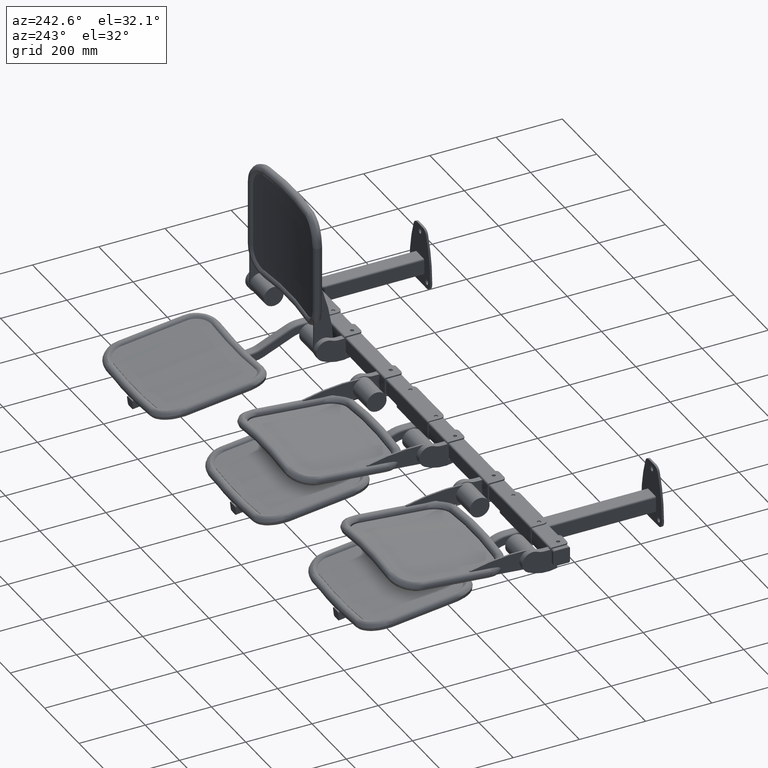
[diagram: clean part render]
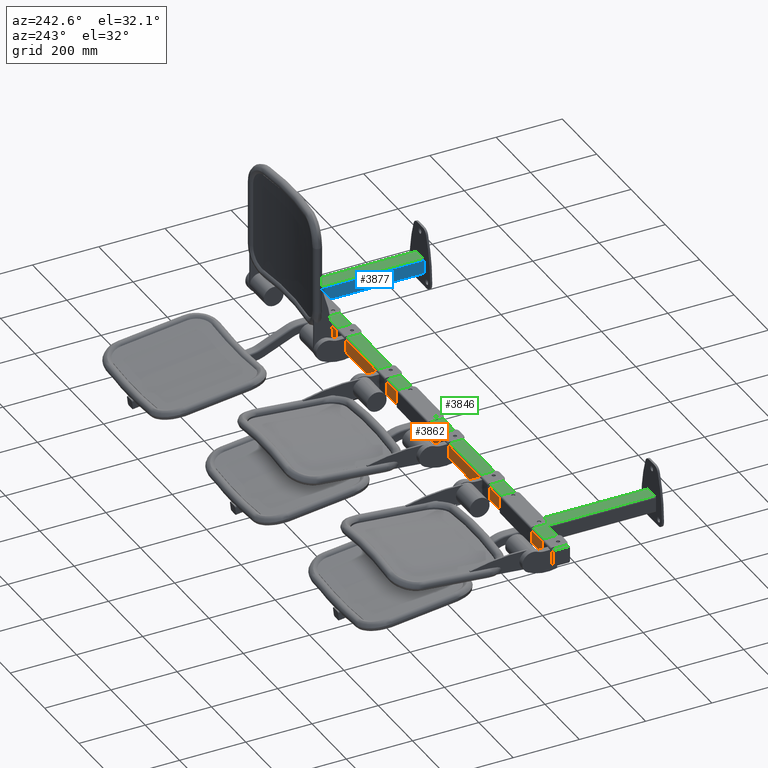
[diagram: same view with three faces highlighted in distinct colors, each labeled with its STEP entity id]
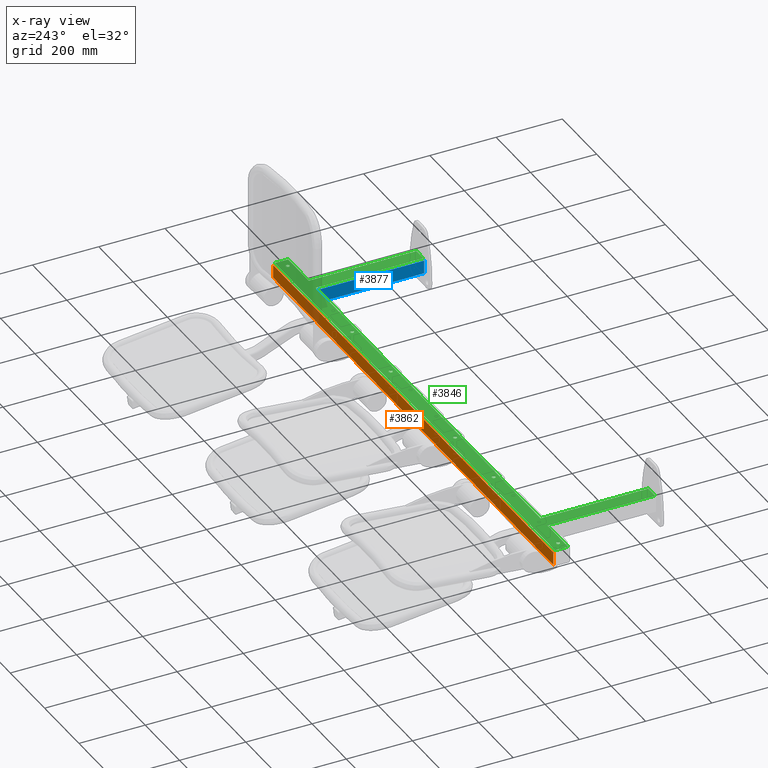
[diagram: x-ray of the same camera — body ghosted, the three highlighted faces saturated]
A machine part, auxiliary view with three faces highlighted in distinct colors.
The next image is the same camera in x-ray (body ghosted, the three faces saturated) — at least one of them is partly hidden behind the body in this view.
Their STEP definitions:

[orange] entity #3862 — the highlighted planar face has unit normal (0, -1, 0).
#3862 = ADVANCED_FACE ( 'NONE', ( #8371 ), #10495, .F. ) ;
#4730 = CARTESIAN_POINT ( 'NONE',  ( 816.0000000000000000, 376.0000000000000000, -19.99999999999999600 ) ) ;
#4731 = CARTESIAN_POINT ( 'NONE',  ( -816.0000000000000000, 376.0000000000000000, -19.99999999999999600 ) ) ;
#4752 = CARTESIAN_POINT ( 'NONE',  ( 816.0000000000000000, 376.0000000000000000, 20.00000000000000000 ) ) ;
#4958 = CARTESIAN_POINT ( 'NONE',  ( -816.0000000000000000, 376.0000000000000000, 20.00000000000000000 ) ) ;
#5365 = LINE ( 'NONE', #5999, #5394 ) ;
#5386 = LINE ( 'NONE', #5994, #5389 ) ;
#5389 = VECTOR ( 'NONE', #5995, 1000.000000000000000 ) ;
#5392 = LINE ( 'NONE', #6005, #5398 ) ;
#5394 = VECTOR ( 'NONE', #6004, 1000.000000000000000 ) ;
#5396 = LINE ( 'NONE', #6007, #5402 ) ;
#5398 = VECTOR ( 'NONE', #6006, 1000.000000000000000 ) ;
#5402 = VECTOR ( 'NONE', #6008, 1000.000000000000000 ) ;
#5994 = CARTESIAN_POINT ( 'NONE',  ( -818.0000000000000000, 376.0000000000000000, 20.00000000000000000 ) ) ;
#5995 = DIRECTION ( 'NONE',  ( 1.000000000000000000, -0.0000000000000000000, -0.0000000000000000000 ) ) ;
#5999 = CARTESIAN_POINT ( 'NONE',  ( 816.0000000000000000, 376.0000000000000000, 25.00000000000000000 ) ) ;
#6004 = DIRECTION ( 'NONE',  ( 0.0000000000000000000, 0.0000000000000000000, -1.000000000000000000 ) ) ;
#6005 = CARTESIAN_POINT ( 'NONE',  ( -818.0000000000000000, 376.0000000000000000, -19.99999999999999600 ) ) ;
#6006 = DIRECTION ( 'NONE',  ( -1.000000000000000000, 0.0000000000000000000, 0.0000000000000000000 ) ) ;
#6007 = CARTESIAN_POINT ( 'NONE',  ( -816.0000000000000000, 376.0000000000000000, 25.00000000000000000 ) ) ;
#6008 = DIRECTION ( 'NONE',  ( -0.0000000000000000000, -0.0000000000000000000, 1.000000000000000000 ) ) ;
#8371 = FACE_OUTER_BOUND ( 'NONE', #13182, .T. ) ;
#10393 = CARTESIAN_POINT ( 'NONE',  ( -818.0000000000000000, 376.0000000000000000, 25.00000000000000000 ) ) ;
#10495 = PLANE ( 'NONE',  #15329 ) ;
#10497 = DIRECTION ( 'NONE',  ( 0.0000000000000000000, -1.000000000000000000, 0.0000000000000000000 ) ) ;
#10498 = DIRECTION ( 'NONE',  ( 0.0000000000000000000, -0.0000000000000000000, -1.000000000000000000 ) ) ;
#12459 = EDGE_CURVE ( 'NONE', #14390, #13100, #5386, .T. ) ;
#12460 = EDGE_CURVE ( 'NONE', #13100, #13078, #5365, .T. ) ;
#12461 = EDGE_CURVE ( 'NONE', #13078, #13079, #5392, .T. ) ;
#12462 = EDGE_CURVE ( 'NONE', #13079, #14390, #5396, .T. ) ;
#12643 = ORIENTED_EDGE ( 'NONE', *, *, #12459, .T. ) ;
#12644 = ORIENTED_EDGE ( 'NONE', *, *, #12460, .T. ) ;
#12645 = ORIENTED_EDGE ( 'NONE', *, *, #12461, .T. ) ;
#12646 = ORIENTED_EDGE ( 'NONE', *, *, #12462, .T. ) ;
#13078 = VERTEX_POINT ( 'NONE', #4730 ) ;
#13079 = VERTEX_POINT ( 'NONE', #4731 ) ;
#13100 = VERTEX_POINT ( 'NONE', #4752 ) ;
#13182 = EDGE_LOOP ( 'NONE', ( #12643, #12644, #12645, #12646 ) ) ;
#14390 = VERTEX_POINT ( 'NONE', #4958 ) ;
#15329 = AXIS2_PLACEMENT_3D ( 'NONE', #10393, #10497, #10498 ) ;

[blue] entity #3877 — the highlighted planar face has unit normal (1, 0, 0).
#3877 = ADVANCED_FACE ( 'NONE', ( #8394 ), #6387, .F. ) ;
#4558 = ORIENTED_EDGE ( 'NONE', *, *, #12230, .T. ) ;
#4559 = ORIENTED_EDGE ( 'NONE', *, *, #12232, .T. ) ;
#4560 = ORIENTED_EDGE ( 'NONE', *, *, #12233, .F. ) ;
#4561 = ORIENTED_EDGE ( 'NONE', *, *, #12234, .T. ) ;
#4758 = CARTESIAN_POINT ( 'NONE',  ( 649.9999999999998900, 326.0000000000000000, 20.00000000000000000 ) ) ;
#4954 = CARTESIAN_POINT ( 'NONE',  ( 649.9999999999998900, 326.0000000000000000, -19.99999999999999600 ) ) ;
#4955 = CARTESIAN_POINT ( 'NONE',  ( 650.0000000000000000, 6.000000000000000900, -19.99999999999999600 ) ) ;
#4956 = CARTESIAN_POINT ( 'NONE',  ( 650.0000000000000000, 6.000000000000000900, 20.00000000000000000 ) ) ;
#6285 = CARTESIAN_POINT ( 'NONE',  ( 649.9999999999998900, 326.0000000000000000, 25.00000000000000000 ) ) ;
#6387 = PLANE ( 'NONE',  #9076 ) ;
#6389 = DIRECTION ( 'NONE',  ( 1.000000000000000000, 3.469446951953614200E-016, -0.0000000000000000000 ) ) ;
#6390 = DIRECTION ( 'NONE',  ( -3.469446951953614200E-016, 1.000000000000000000, 0.0000000000000000000 ) ) ;
#6890 = CARTESIAN_POINT ( 'NONE',  ( 649.9999999999998900, 326.0000000000000000, 25.00000000000000000 ) ) ;
#6891 = DIRECTION ( 'NONE',  ( -0.0000000000000000000, -0.0000000000000000000, -1.000000000000000000 ) ) ;
#6893 = CARTESIAN_POINT ( 'NONE',  ( 650.0000000000000000, 6.000000000000003600, -19.99999999999999600 ) ) ;
#6894 = DIRECTION ( 'NONE',  ( 3.469446951953614200E-016, -1.000000000000000000, 0.0000000000000000000 ) ) ;
#6895 = CARTESIAN_POINT ( 'NONE',  ( 650.0000000000000000, 6.000000000000000900, 25.00000000000000000 ) ) ;
#6896 = DIRECTION ( 'NONE',  ( -0.0000000000000000000, -0.0000000000000000000, -1.000000000000000000 ) ) ;
#6897 = CARTESIAN_POINT ( 'NONE',  ( 649.9999999999998900, 326.0000000000000000, 20.00000000000000000 ) ) ;
#6898 = DIRECTION ( 'NONE',  ( -3.469446951953614200E-016, 1.000000000000000000, -0.0000000000000000000 ) ) ;
#8394 = FACE_OUTER_BOUND ( 'NONE', #13143, .T. ) ;
#9076 = AXIS2_PLACEMENT_3D ( 'NONE', #6285, #6389, #6390 ) ;
#12230 = EDGE_CURVE ( 'NONE', #13106, #14382, #13432, .T. ) ;
#12232 = EDGE_CURVE ( 'NONE', #14382, #14384, #13436, .T. ) ;
#12233 = EDGE_CURVE ( 'NONE', #14386, #14384, #13438, .T. ) ;
#12234 = EDGE_CURVE ( 'NONE', #14386, #13106, #13440, .T. ) ;
#13106 = VERTEX_POINT ( 'NONE', #4758 ) ;
#13143 = EDGE_LOOP ( 'NONE', ( #4558, #4559, #4560, #4561 ) ) ;
#13432 = LINE ( 'NONE', #6890, #13435 ) ;
#13435 = VECTOR ( 'NONE', #6891, 1000.000000000000000 ) ;
#13436 = LINE ( 'NONE', #6893, #13439 ) ;
#13438 = LINE ( 'NONE', #6895, #13441 ) ;
#13439 = VECTOR ( 'NONE', #6894, 1000.000000000000000 ) ;
#13440 = LINE ( 'NONE', #6897, #13443 ) ;
#13441 = VECTOR ( 'NONE', #6896, 1000.000000000000000 ) ;
#13443 = VECTOR ( 'NONE', #6898, 1000.000000000000000 ) ;
#14382 = VERTEX_POINT ( 'NONE', #4954 ) ;
#14384 = VERTEX_POINT ( 'NONE', #4955 ) ;
#14386 = VERTEX_POINT ( 'NONE', #4956 ) ;

[green] entity #3846 — the highlighted planar face has unit normal (0, 0, -1).
#1607 = CARTESIAN_POINT ( 'NONE',  ( 187.5000000000000000, 347.0000000000000000, 25.00000000000000000 ) ) ;
#1608 = DIRECTION ( 'NONE',  ( 0.0000000000000000000, 0.0000000000000000000, 1.000000000000000000 ) ) ;
#1609 = DIRECTION ( 'NONE',  ( 1.000000000000000000, 0.0000000000000000000, 0.0000000000000000000 ) ) ;
#1617 = CARTESIAN_POINT ( 'NONE',  ( -187.5000000000000000, 347.0000000000000000, 25.00000000000000000 ) ) ;
#1618 = DIRECTION ( 'NONE',  ( 0.0000000000000000000, 0.0000000000000000000, 1.000000000000000000 ) ) ;
#1619 = DIRECTION ( 'NONE',  ( 1.000000000000000000, 0.0000000000000000000, 0.0000000000000000000 ) ) ;
#1627 = CARTESIAN_POINT ( 'NONE',  ( 412.5000000000000600, 347.0000000000000000, 25.00000000000000000 ) ) ;
#1628 = DIRECTION ( 'NONE',  ( 0.0000000000000000000, 0.0000000000000000000, 1.000000000000000000 ) ) ;
#1629 = DIRECTION ( 'NONE',  ( -1.000000000000000000, 0.0000000000000000000, 0.0000000000000000000 ) ) ;
#1637 = CARTESIAN_POINT ( 'NONE',  ( 787.5000000000001100, 347.0000000000000000, 25.00000000000000000 ) ) ;
#1638 = DIRECTION ( 'NONE',  ( 0.0000000000000000000, 0.0000000000000000000, 1.000000000000000000 ) ) ;
#1639 = DIRECTION ( 'NONE',  ( -1.000000000000000000, 0.0000000000000000000, 0.0000000000000000000 ) ) ;
#1647 = CARTESIAN_POINT ( 'NONE',  ( -412.5000000000000600, 347.0000000000000000, 25.00000000000000000 ) ) ;
#1648 = DIRECTION ( 'NONE',  ( 0.0000000000000000000, 0.0000000000000000000, 1.000000000000000000 ) ) ;
#1649 = DIRECTION ( 'NONE',  ( 1.000000000000000000, 0.0000000000000000000, 0.0000000000000000000 ) ) ;
#1657 = CARTESIAN_POINT ( 'NONE',  ( -787.5000000000001100, 347.0000000000000000, 25.00000000000000000 ) ) ;
#1658 = DIRECTION ( 'NONE',  ( 0.0000000000000000000, 0.0000000000000000000, 1.000000000000000000 ) ) ;
#1659 = DIRECTION ( 'NONE',  ( 1.000000000000000000, 0.0000000000000000000, 0.0000000000000000000 ) ) ;
#2873 = VERTEX_POINT ( 'NONE', #13478 ) ;
#2878 = VERTEX_POINT ( 'NONE', #13481 ) ;
#2881 = VERTEX_POINT ( 'NONE', #13483 ) ;
#2884 = VERTEX_POINT ( 'NONE', #13486 ) ;
#2909 = VERTEX_POINT ( 'NONE', #13506 ) ;
#2914 = VERTEX_POINT ( 'NONE', #13511 ) ;
#3846 = ADVANCED_FACE ( 'NONE', ( #8320, #8338, #8326, #8335, #8336, #8339, #8340 ), #4229, .F. ) ;
#4226 = DIRECTION ( 'NONE',  ( 0.0000000000000000000, 0.0000000000000000000, -1.000000000000000000 ) ) ;
#4227 = CARTESIAN_POINT ( 'NONE',  ( 0.0000000000000000000, 0.0000000000000000000, 25.00000000000000000 ) ) ;
#4229 = PLANE ( 'NONE',  #15320 ) ;
#4231 = DIRECTION ( 'NONE',  ( -1.000000000000000000, 0.0000000000000000000, -0.0000000000000000000 ) ) ;
#4494 = ORIENTED_EDGE ( 'NONE', *, *, #15163, .F. ) ;
#4495 = ORIENTED_EDGE ( 'NONE', *, *, #12186, .F. ) ;
#4496 = ORIENTED_EDGE ( 'NONE', *, *, #15171, .F. ) ;
#4497 = ORIENTED_EDGE ( 'NONE', *, *, #12187, .F. ) ;
#4498 = ORIENTED_EDGE ( 'NONE', *, *, #15179, .F. ) ;
#4499 = ORIENTED_EDGE ( 'NONE', *, *, #12188, .F. ) ;
#4500 = ORIENTED_EDGE ( 'NONE', *, *, #12189, .T. ) ;
#4501 = ORIENTED_EDGE ( 'NONE', *, *, #12190, .T. ) ;
#4502 = ORIENTED_EDGE ( 'NONE', *, *, #12191, .T. ) ;
#4503 = ORIENTED_EDGE ( 'NONE', *, *, #12192, .T. ) ;
#4504 = ORIENTED_EDGE ( 'NONE', *, *, #12193, .T. ) ;
#4505 = ORIENTED_EDGE ( 'NONE', *, *, #12194, .T. ) ;
#4506 = ORIENTED_EDGE ( 'NONE', *, *, #12432, .T. ) ;
#4507 = ORIENTED_EDGE ( 'NONE', *, *, #12195, .T. ) ;
#4508 = ORIENTED_EDGE ( 'NONE', *, *, #12196, .T. ) ;
#4509 = ORIENTED_EDGE ( 'NONE', *, *, #12197, .T. ) ;
#4510 = ORIENTED_EDGE ( 'NONE', *, *, #12198, .T. ) ;
#4511 = ORIENTED_EDGE ( 'NONE', *, *, #12199, .T. ) ;
#4512 = ORIENTED_EDGE ( 'NONE', *, *, #15175, .F. ) ;
#4513 = ORIENTED_EDGE ( 'NONE', *, *, #12200, .F. ) ;
#4514 = ORIENTED_EDGE ( 'NONE', *, *, #15167, .F. ) ;
#4515 = ORIENTED_EDGE ( 'NONE', *, *, #12201, .F. ) ;
#4516 = ORIENTED_EDGE ( 'NONE', *, *, #15159, .F. ) ;
#4517 = ORIENTED_EDGE ( 'NONE', *, *, #12202, .F. ) ;
#4700 = CARTESIAN_POINT ( 'NONE',  ( -655.0000000000000000, 6.000000000000000000, 25.00000000000000000 ) ) ;
#4857 = CARTESIAN_POINT ( 'NONE',  ( 816.0000000000000000, 371.0000000000000000, 25.00000000000000000 ) ) ;
#4872 = CARTESIAN_POINT ( 'NONE',  ( 654.9999999999998900, 331.0000000000000000, 25.00000000000000000 ) ) ;
#4881 = CARTESIAN_POINT ( 'NONE',  ( 695.0000000000001100, 6.000000000000000900, 25.00000000000000000 ) ) ;
#4908 = CARTESIAN_POINT ( 'NONE',  ( -816.0000000000000000, 371.0000000000000000, 25.00000000000000000 ) ) ;
#4924 = CARTESIAN_POINT ( 'NONE',  ( -695.0000000000002300, 331.0000000000000000, 25.00000000000000000 ) ) ;
#4945 = CARTESIAN_POINT ( 'NONE',  ( 816.0000000000000000, 331.0000000000000000, 25.00000000000000000 ) ) ;
#4946 = CARTESIAN_POINT ( 'NONE',  ( 655.0000000000000000, 6.000000000000000900, 25.00000000000000000 ) ) ;
#4949 = CARTESIAN_POINT ( 'NONE',  ( -654.9999999999998900, 331.0000000000000000, 25.00000000000000000 ) ) ;
#4974 = CARTESIAN_POINT ( 'NONE',  ( 695.0000000000002300, 331.0000000000000000, 25.00000000000000000 ) ) ;
#4989 = CARTESIAN_POINT ( 'NONE',  ( -816.0000000000000000, 331.0000000000000000, 25.00000000000000000 ) ) ;
#4996 = CARTESIAN_POINT ( 'NONE',  ( -417.7500000000000600, 347.0000000000000000, 25.00000000000000000 ) ) ;
#5001 = CARTESIAN_POINT ( 'NONE',  ( -407.2500000000000000, 347.0000000000000000, 25.00000000000000000 ) ) ;
#5009 = CARTESIAN_POINT ( 'NONE',  ( -695.0000000000001100, 6.000000000000000900, 25.00000000000000000 ) ) ;
#5020 = CARTESIAN_POINT ( 'NONE',  ( -792.7500000000001100, 347.0000000000000000, 25.00000000000000000 ) ) ;
#5025 = CARTESIAN_POINT ( 'NONE',  ( -782.2500000000001100, 347.0000000000000000, 25.00000000000000000 ) ) ;
#5027 = CARTESIAN_POINT ( 'NONE',  ( 192.7500000000000000, 347.0000000000000000, 25.00000000000000000 ) ) ;
#5028 = CARTESIAN_POINT ( 'NONE',  ( 182.2500000000000000, 347.0000000000000000, 25.00000000000000000 ) ) ;
#5298 = LINE ( 'NONE', #5932, #5301 ) ;
#5301 = VECTOR ( 'NONE', #5933, 1000.000000000000000 ) ;
#5932 = CARTESIAN_POINT ( 'NONE',  ( -700.0000000000001100, 6.000000000000000900, 25.00000000000000000 ) ) ;
#5933 = DIRECTION ( 'NONE',  ( 1.000000000000000000, -1.734723475976805600E-017, 0.0000000000000000000 ) ) ;
#6786 = DIRECTION ( 'NONE',  ( 1.000000000000000000, 0.0000000000000000000, 0.0000000000000000000 ) ) ;
#6790 = CARTESIAN_POINT ( 'NONE',  ( -187.5000000000000000, 347.0000000000000000, 25.00000000000000000 ) ) ;
#6791 = DIRECTION ( 'NONE',  ( 0.0000000000000000000, 0.0000000000000000000, 1.000000000000000000 ) ) ;
#6792 = DIRECTION ( 'NONE',  ( 1.000000000000000000, 0.0000000000000000000, 0.0000000000000000000 ) ) ;
#6793 = CARTESIAN_POINT ( 'NONE',  ( 787.5000000000001100, 347.0000000000000000, 25.00000000000000000 ) ) ;
#6794 = DIRECTION ( 'NONE',  ( 0.0000000000000000000, 0.0000000000000000000, 1.000000000000000000 ) ) ;
#6795 = DIRECTION ( 'NONE',  ( -1.000000000000000000, 0.0000000000000000000, 0.0000000000000000000 ) ) ;
#6796 = CARTESIAN_POINT ( 'NONE',  ( 816.0000000000000000, 0.0000000000000000000, 25.00000000000000000 ) ) ;
#6797 = CARTESIAN_POINT ( 'NONE',  ( 0.0000000000000000000, 331.0000000000000000, 25.00000000000000000 ) ) ;
#6798 = CARTESIAN_POINT ( 'NONE',  ( -787.5000000000001100, 347.0000000000000000, 25.00000000000000000 ) ) ;
#6799 = DIRECTION ( 'NONE',  ( 0.0000000000000000000, 0.0000000000000000000, 1.000000000000000000 ) ) ;
#6800 = DIRECTION ( 'NONE',  ( 1.000000000000000000, 0.0000000000000000000, 0.0000000000000000000 ) ) ;
#6802 = DIRECTION ( 'NONE',  ( 0.0000000000000000000, 1.000000000000000000, 0.0000000000000000000 ) ) ;
#6803 = CARTESIAN_POINT ( 'NONE',  ( 0.0000000000000000000, 371.0000000000000000, 25.00000000000000000 ) ) ;
#6804 = DIRECTION ( 'NONE',  ( -1.000000000000000000, 0.0000000000000000000, 0.0000000000000000000 ) ) ;
#6805 = CARTESIAN_POINT ( 'NONE',  ( -816.0000000000000000, 0.0000000000000000000, 25.00000000000000000 ) ) ;
#6806 = DIRECTION ( 'NONE',  ( 0.0000000000000000000, -1.000000000000000000, 0.0000000000000000000 ) ) ;
#6807 = CARTESIAN_POINT ( 'NONE',  ( 0.0000000000000000000, 331.0000000000000000, 25.00000000000000000 ) ) ;
#6808 = DIRECTION ( 'NONE',  ( 1.000000000000000000, 0.0000000000000000000, 0.0000000000000000000 ) ) ;
#6809 = CARTESIAN_POINT ( 'NONE',  ( -695.0000000000001100, -2.411265631607761900E-013, 25.00000000000000000 ) ) ;
#6810 = DIRECTION ( 'NONE',  ( 3.469446951953614200E-016, -1.000000000000000000, 0.0000000000000000000 ) ) ;
#6811 = CARTESIAN_POINT ( 'NONE',  ( -655.0000000000000000, 2.272487753529617300E-013, 25.00000000000000000 ) ) ;
#6812 = DIRECTION ( 'NONE',  ( 3.469446951953614200E-016, 1.000000000000000000, 0.0000000000000000000 ) ) ;
#6813 = CARTESIAN_POINT ( 'NONE',  ( 0.0000000000000000000, 331.0000000000000000, 25.00000000000000000 ) ) ;
#6814 = DIRECTION ( 'NONE',  ( 1.000000000000000000, 0.0000000000000000000, 0.0000000000000000000 ) ) ;
#6815 = CARTESIAN_POINT ( 'NONE',  ( 655.0000000000000000, 2.272487753529617300E-013, 25.00000000000000000 ) ) ;
#6816 = DIRECTION ( 'NONE',  ( 3.469446951953614200E-016, -1.000000000000000000, 0.0000000000000000000 ) ) ;
#6817 = CARTESIAN_POINT ( 'NONE',  ( 650.0000000000000000, 6.000000000000000900, 25.00000000000000000 ) ) ;
#6818 = DIRECTION ( 'NONE',  ( 1.000000000000000000, 0.0000000000000000000, 0.0000000000000000000 ) ) ;
#6819 = CARTESIAN_POINT ( 'NONE',  ( 695.0000000000001100, -2.411265631607761900E-013, 25.00000000000000000 ) ) ;
#6820 = DIRECTION ( 'NONE',  ( 3.469446951953614200E-016, 1.000000000000000000, 0.0000000000000000000 ) ) ;
#6822 = CARTESIAN_POINT ( 'NONE',  ( -412.5000000000000600, 347.0000000000000000, 25.00000000000000000 ) ) ;
#6823 = DIRECTION ( 'NONE',  ( 0.0000000000000000000, 0.0000000000000000000, 1.000000000000000000 ) ) ;
#6824 = DIRECTION ( 'NONE',  ( 1.000000000000000000, 0.0000000000000000000, 0.0000000000000000000 ) ) ;
#6825 = CARTESIAN_POINT ( 'NONE',  ( 412.5000000000000600, 347.0000000000000000, 25.00000000000000000 ) ) ;
#6826 = DIRECTION ( 'NONE',  ( 0.0000000000000000000, 0.0000000000000000000, 1.000000000000000000 ) ) ;
#6827 = DIRECTION ( 'NONE',  ( -1.000000000000000000, 0.0000000000000000000, 0.0000000000000000000 ) ) ;
#6828 = CARTESIAN_POINT ( 'NONE',  ( 187.5000000000000000, 347.0000000000000000, 25.00000000000000000 ) ) ;
#6829 = DIRECTION ( 'NONE',  ( 0.0000000000000000000, 0.0000000000000000000, 1.000000000000000000 ) ) ;
#6830 = DIRECTION ( 'NONE',  ( 1.000000000000000000, 0.0000000000000000000, 0.0000000000000000000 ) ) ;
#8320 = FACE_BOUND ( 'NONE', #13140, .T. ) ;
#8326 = FACE_BOUND ( 'NONE', #12697, .T. ) ;
#8335 = FACE_OUTER_BOUND ( 'NONE', #13133, .T. ) ;
#8336 = FACE_BOUND ( 'NONE', #12707, .T. ) ;
#8338 = FACE_BOUND ( 'NONE', #13149, .T. ) ;
#8339 = FACE_BOUND ( 'NONE', #13117, .T. ) ;
#8340 = FACE_BOUND ( 'NONE', #13114, .T. ) ;
#11647 = CIRCLE ( 'NONE', #14846, 5.250000000000004400 ) ;
#11653 = CIRCLE ( 'NONE', #14848, 5.250000000000004400 ) ;
#11659 = CIRCLE ( 'NONE', #14850, 5.250000000000032000 ) ;
#11665 = CIRCLE ( 'NONE', #14852, 5.249999999999976900 ) ;
#11671 = CIRCLE ( 'NONE', #14854, 5.250000000000032000 ) ;
#11677 = CIRCLE ( 'NONE', #14856, 5.249999999999976900 ) ;
#12186 = EDGE_CURVE ( 'NONE', #2878, #2881, #13357, .T. ) ;
#12187 = EDGE_CURVE ( 'NONE', #2914, #2873, #13353, .T. ) ;
#12188 = EDGE_CURVE ( 'NONE', #14608, #14603, #13358, .T. ) ;
#12189 = EDGE_CURVE ( 'NONE', #14422, #14364, #13359, .T. ) ;
#12190 = EDGE_CURVE ( 'NONE', #14364, #14198, #13360, .T. ) ;
#12191 = EDGE_CURVE ( 'NONE', #14198, #14290, #13363, .T. ) ;
#12192 = EDGE_CURVE ( 'NONE', #14290, #14449, #13365, .T. ) ;
#12193 = EDGE_CURVE ( 'NONE', #14449, #14322, #13367, .T. ) ;
#12194 = EDGE_CURVE ( 'NONE', #14322, #14592, #13369, .T. ) ;
#12195 = EDGE_CURVE ( 'NONE', #13046, #14372, #13371, .T. ) ;
#12196 = EDGE_CURVE ( 'NONE', #14372, #14218, #13373, .T. ) ;
#12197 = EDGE_CURVE ( 'NONE', #14218, #14366, #13375, .T. ) ;
#12198 = EDGE_CURVE ( 'NONE', #14366, #14236, #13377, .T. ) ;
#12199 = EDGE_CURVE ( 'NONE', #14236, #14422, #13379, .T. ) ;
#12200 = EDGE_CURVE ( 'NONE', #14584, #14579, #13381, .T. ) ;
#12201 = EDGE_CURVE ( 'NONE', #2884, #2909, #13361, .T. ) ;
#12202 = EDGE_CURVE ( 'NONE', #14610, #14611, #13383, .T. ) ;
#12432 = EDGE_CURVE ( 'NONE', #14592, #13046, #5298, .T. ) ;
#12697 = EDGE_LOOP ( 'NONE', ( #4498, #4499 ) ) ;
#12707 = EDGE_LOOP ( 'NONE', ( #4512, #4513 ) ) ;
#13046 = VERTEX_POINT ( 'NONE', #4700 ) ;
#13114 = EDGE_LOOP ( 'NONE', ( #4516, #4517 ) ) ;
#13117 = EDGE_LOOP ( 'NONE', ( #4514, #4515 ) ) ;
#13133 = EDGE_LOOP ( 'NONE', ( #4500, #4501, #4502, #4503, #4504, #4505, #4506, #4507, #4508, #4509, #4510, #4511 ) ) ;
#13140 = EDGE_LOOP ( 'NONE', ( #4494, #4495 ) ) ;
#13149 = EDGE_LOOP ( 'NONE', ( #4496, #4497 ) ) ;
#13353 = CIRCLE ( 'NONE', #13651, 5.249999999999976900 ) ;
#13357 = CIRCLE ( 'NONE', #13650, 5.250000000000004400 ) ;
#13358 = CIRCLE ( 'NONE', #13652, 5.249999999999976900 ) ;
#13359 = LINE ( 'NONE', #6797, #13362 ) ;
#13360 = LINE ( 'NONE', #6796, #13364 ) ;
#13361 = CIRCLE ( 'NONE', #13654, 5.250000000000032000 ) ;
#13362 = VECTOR ( 'NONE', #6786, 1000.000000000000000 ) ;
#13363 = LINE ( 'NONE', #6803, #13366 ) ;
#13364 = VECTOR ( 'NONE', #6802, 1000.000000000000000 ) ;
#13365 = LINE ( 'NONE', #6805, #13368 ) ;
#13366 = VECTOR ( 'NONE', #6804, 1000.000000000000000 ) ;
#13367 = LINE ( 'NONE', #6807, #13370 ) ;
#13368 = VECTOR ( 'NONE', #6806, 1000.000000000000000 ) ;
#13369 = LINE ( 'NONE', #6809, #13372 ) ;
#13370 = VECTOR ( 'NONE', #6808, 1000.000000000000000 ) ;
#13371 = LINE ( 'NONE', #6811, #13374 ) ;
#13372 = VECTOR ( 'NONE', #6810, 1000.000000000000000 ) ;
#13373 = LINE ( 'NONE', #6813, #13376 ) ;
#13374 = VECTOR ( 'NONE', #6812, 1000.000000000000000 ) ;
#13375 = LINE ( 'NONE', #6815, #13378 ) ;
#13376 = VECTOR ( 'NONE', #6814, 1000.000000000000000 ) ;
#13377 = LINE ( 'NONE', #6817, #13380 ) ;
#13378 = VECTOR ( 'NONE', #6816, 1000.000000000000000 ) ;
#13379 = LINE ( 'NONE', #6819, #13382 ) ;
#13380 = VECTOR ( 'NONE', #6818, 1000.000000000000000 ) ;
#13381 = CIRCLE ( 'NONE', #13653, 5.250000000000032000 ) ;
#13382 = VECTOR ( 'NONE', #6820, 1000.000000000000000 ) ;
#13383 = CIRCLE ( 'NONE', #13655, 5.250000000000004400 ) ;
#13478 = CARTESIAN_POINT ( 'NONE',  ( 782.2500000000001100, 347.0000000000000000, 25.00000000000000000 ) ) ;
#13481 = CARTESIAN_POINT ( 'NONE',  ( -182.2500000000000000, 347.0000000000000000, 25.00000000000000000 ) ) ;
#13483 = CARTESIAN_POINT ( 'NONE',  ( -192.7500000000000000, 347.0000000000000000, 25.00000000000000000 ) ) ;
#13486 = CARTESIAN_POINT ( 'NONE',  ( 417.7500000000000600, 347.0000000000000000, 25.00000000000000000 ) ) ;
#13506 = CARTESIAN_POINT ( 'NONE',  ( 407.2500000000000000, 347.0000000000000000, 25.00000000000000000 ) ) ;
#13511 = CARTESIAN_POINT ( 'NONE',  ( 792.7500000000001100, 347.0000000000000000, 25.00000000000000000 ) ) ;
#13650 = AXIS2_PLACEMENT_3D ( 'NONE', #6790, #6791, #6792 ) ;
#13651 = AXIS2_PLACEMENT_3D ( 'NONE', #6793, #6794, #6795 ) ;
#13652 = AXIS2_PLACEMENT_3D ( 'NONE', #6798, #6799, #6800 ) ;
#13653 = AXIS2_PLACEMENT_3D ( 'NONE', #6822, #6823, #6824 ) ;
#13654 = AXIS2_PLACEMENT_3D ( 'NONE', #6825, #6826, #6827 ) ;
#13655 = AXIS2_PLACEMENT_3D ( 'NONE', #6828, #6829, #6830 ) ;
#14198 = VERTEX_POINT ( 'NONE', #4857 ) ;
#14218 = VERTEX_POINT ( 'NONE', #4872 ) ;
#14236 = VERTEX_POINT ( 'NONE', #4881 ) ;
#14290 = VERTEX_POINT ( 'NONE', #4908 ) ;
#14322 = VERTEX_POINT ( 'NONE', #4924 ) ;
#14364 = VERTEX_POINT ( 'NONE', #4945 ) ;
#14366 = VERTEX_POINT ( 'NONE', #4946 ) ;
#14372 = VERTEX_POINT ( 'NONE', #4949 ) ;
#14422 = VERTEX_POINT ( 'NONE', #4974 ) ;
#14449 = VERTEX_POINT ( 'NONE', #4989 ) ;
#14579 = VERTEX_POINT ( 'NONE', #4996 ) ;
#14584 = VERTEX_POINT ( 'NONE', #5001 ) ;
#14592 = VERTEX_POINT ( 'NONE', #5009 ) ;
#14603 = VERTEX_POINT ( 'NONE', #5020 ) ;
#14608 = VERTEX_POINT ( 'NONE', #5025 ) ;
#14610 = VERTEX_POINT ( 'NONE', #5027 ) ;
#14611 = VERTEX_POINT ( 'NONE', #5028 ) ;
#14846 = AXIS2_PLACEMENT_3D ( 'NONE', #1607, #1608, #1609 ) ;
#14848 = AXIS2_PLACEMENT_3D ( 'NONE', #1617, #1618, #1619 ) ;
#14850 = AXIS2_PLACEMENT_3D ( 'NONE', #1627, #1628, #1629 ) ;
#14852 = AXIS2_PLACEMENT_3D ( 'NONE', #1637, #1638, #1639 ) ;
#14854 = AXIS2_PLACEMENT_3D ( 'NONE', #1647, #1648, #1649 ) ;
#14856 = AXIS2_PLACEMENT_3D ( 'NONE', #1657, #1658, #1659 ) ;
#15159 = EDGE_CURVE ( 'NONE', #14611, #14610, #11647, .T. ) ;
#15163 = EDGE_CURVE ( 'NONE', #2881, #2878, #11653, .T. ) ;
#15167 = EDGE_CURVE ( 'NONE', #2909, #2884, #11659, .T. ) ;
#15171 = EDGE_CURVE ( 'NONE', #2873, #2914, #11665, .T. ) ;
#15175 = EDGE_CURVE ( 'NONE', #14579, #14584, #11671, .T. ) ;
#15179 = EDGE_CURVE ( 'NONE', #14603, #14608, #11677, .T. ) ;
#15320 = AXIS2_PLACEMENT_3D ( 'NONE', #4227, #4226, #4231 ) ;